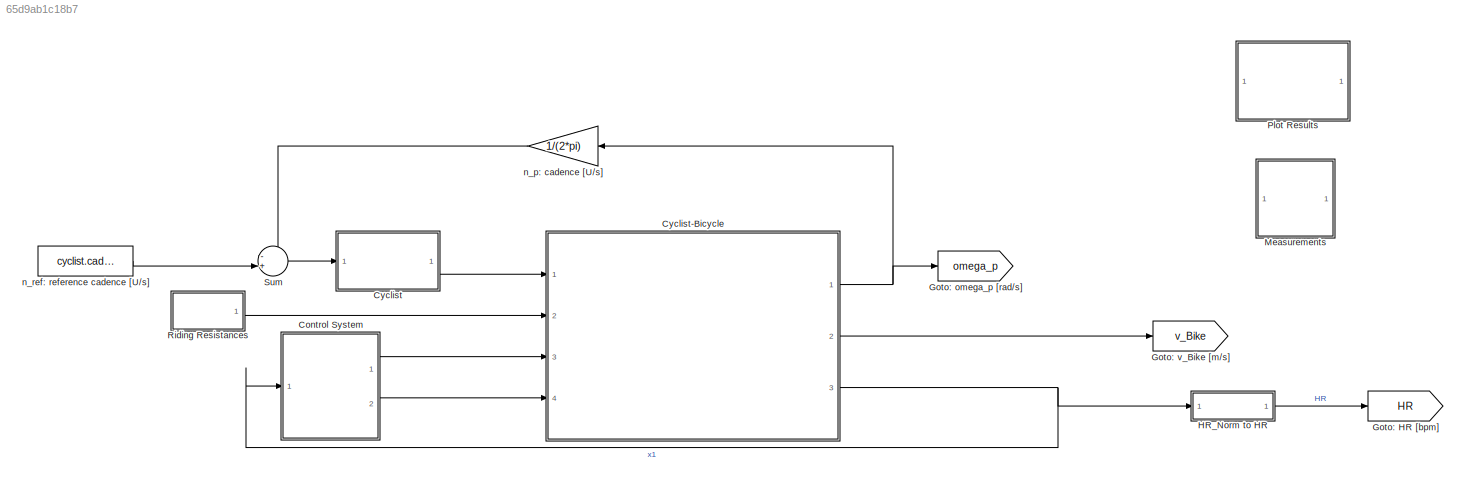
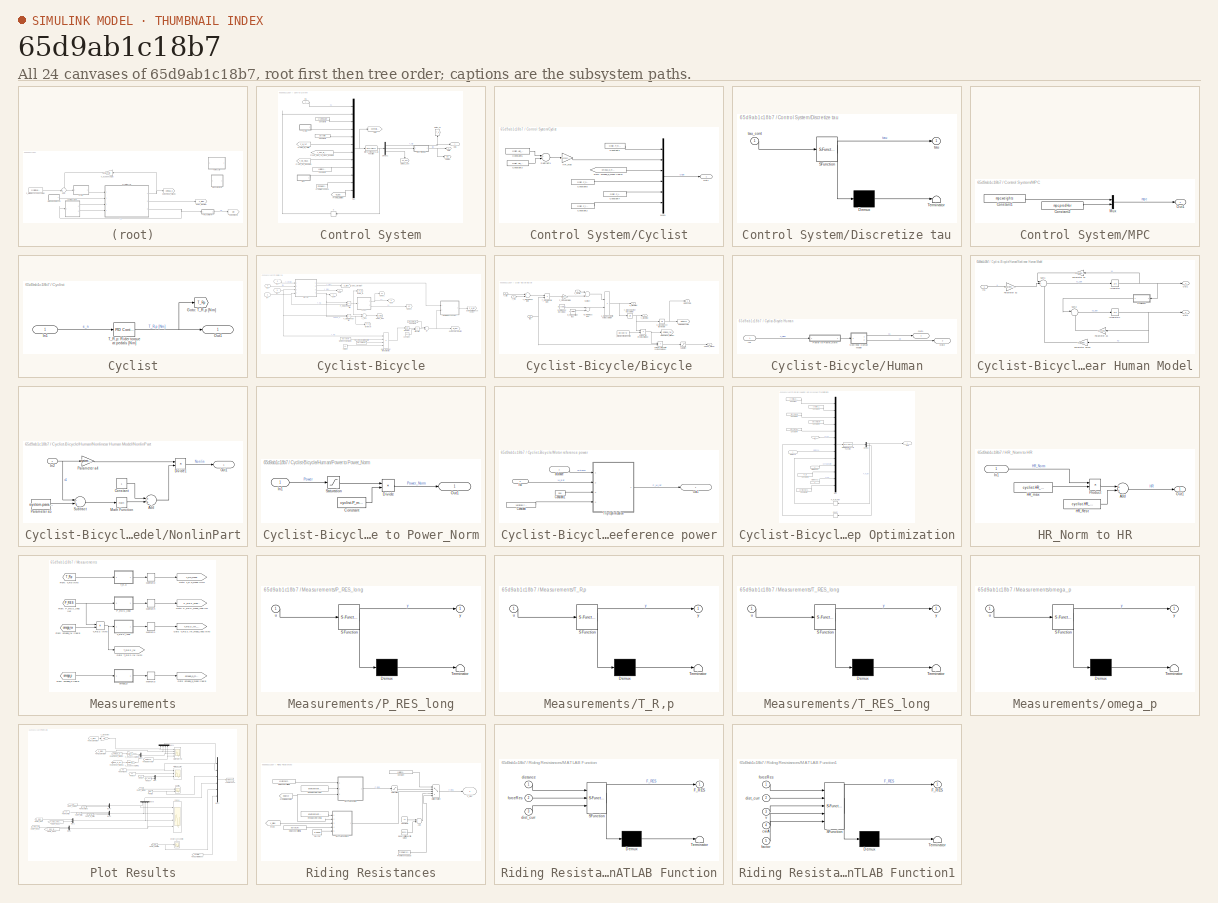
[diagram: thumbnail index - all 24 canvases of the model, root first then tree order]
MODEL slx_65d9ab1c18b7
KIND model
CONFIG AbsTol = auto
CONFIG FixedStep = 1
CONFIG MaxStep = auto
CONFIG MinStep = auto
CONFIG RelTol = 1e-3
CONFIG SampleTimeConstraint = Unconstrained
CONFIG Solver = ode4
CONFIG SolverMode = Auto
CONFIG SolverName = ode4
CONFIG StartTime = 0.0
CONFIG StopTime = 2000
BLOCK [SubSystem] Control System
  Ports = [1, 2]
  RequestExecContextInheritance = off
  Variant = off
BLOCK [Constant] Control System/Constant2
  Value = bicycle.rrw
BLOCK [Constant] Control System/Constant3
  Value = variation.controller
BLOCK [Constant] Control System/Constant9
  Value = system.param
BLOCK [SubSystem] Control System/Cyclist
  Ports = [0, 1]
  RequestExecContextInheritance = off
  Variant = off
BLOCK [Constant] Control System/Cyclist/Constant1
  Value = cyclist.P_max
BLOCK [Constant] Control System/Cyclist/Constant2
  Value = cyclist.P_ref
BLOCK [Constant] Control System/Cyclist/Constant3
  Value = cyclist.HR_rest
BLOCK [Constant] Control System/Cyclist/Constant5
  Value = cyclist.HR_ref
BLOCK [Constant] Control System/Cyclist/Constant7
  Value = cyclist.P_low
BLOCK [Constant] Control System/Cyclist/Constant8
  Value = cyclist.P_high
BLOCK [From] Control System/Cyclist/From: omega_p_meas [rad//s]
  GotoTag = omega_p_meas
  TagVisibility = global
BLOCK [Gain] Control System/Cyclist/HR_max
  Gain = 1/cyclist.HR_max
  OutDataTypeStr = Inherit: Inherit via internal rule
  ParamDataTypeStr = Inherit: Inherit via internal rule
  SaturateOnIntegerOverflow = off
BLOCK [Mux] Control System/Cyclist/Mux1
  DisplayOption = bar
  Inputs = 6
  Ports = [6, 1]
BLOCK [Outport] Control System/Cyclist/Out1
  IconDisplay = Signal name
BLOCK [Sum] Control System/Cyclist/Subtract1
  InputSameDT = off
  Inputs = +-
  OutDataTypeStr = Inherit: Inherit via internal rule
  Ports = [2, 1]
  SaturateOnIntegerOverflow = off
BLOCK [Demux] Control System/Demux1
  DisplayOption = bar
  Outputs = 3
  Ports = [1, 3]
BLOCK [SubSystem] Control System/Discretize tau
  ErrorFcn = Stateflow.Translate.translate
  PermitHierarchicalResolution = ExplicitOnly
  Ports = [1, 1]
  RequestExecContextInheritance = off
  SFBlockType = MATLAB Function
  TreatAsAtomicUnit = on
  Variant = off
BLOCK [Demux] Control System/Discretize tau/ Demux 
  Outputs = 1
  Ports = [1, 1]
BLOCK [S-Function] Control System/Discretize tau/ SFunction 
  EnableBusSupport = on
  FunctionName = sf_sfun
  PortCounts = [1 2]
  Ports = [1, 2]
  SFunctionDeploymentMode = off
  Tag = Stateflow S-Function TorqueControl_QuadRad_MPC_V16 1
BLOCK [Terminator] Control System/Discretize tau/ Terminator 
BLOCK [Outport] Control System/Discretize tau/tau
  IconDisplay = Port number
BLOCK [Inport] Control System/Discretize tau/tau_cont
  IconDisplay = Port number
BLOCK [FromWorkspace] Control System/From Workspace
  SampleTime = 0
  VariableName = TAU
  ZeroCross = on
BLOCK [From] Control System/From: P_M_ref [W]
  GotoTag = P_M_ref
  TagVisibility = global
BLOCK [From] Control System/From: T_RES_rw_meas_long [Nm] 
  GotoTag = T_RES_rw_meas_long
  TagVisibility = global
BLOCK [From] Control System/From: T_Rp_meas [Nm]
  GotoTag = T_Rp_meas
  TagVisibility = global
BLOCK [From] Control System/From: W_Bat [Wh]
  GotoTag = W_Bat
  TagVisibility = global
BLOCK [Goto] Control System/Goto
  GotoTag = ControllerInput
  TagVisibility = global
BLOCK [Goto] Control System/Goto: T_M
  GotoTag = T_M
  TagVisibility = global
BLOCK [Goto] Control System/Goto: tau
  GotoTag = tau
  TagVisibility = global
BLOCK [Goto] Control System/Goto: x2_est
  GotoTag = x2_est
  TagVisibility = global
BLOCK [Inport] Control System/In1
  IconDisplay = Signal name
BLOCK [MATLABFcn] Control System/Interpreted MATLAB Function
  MATLABFcn = ControlSystemV2
  OutputDimensions = 3
  Ports = [1, 1]
BLOCK [SubSystem] Control System/MPC
  Ports = [0, 1]
  RequestExecContextInheritance = off
  Variant = off
BLOCK [Constant] Control System/MPC/Constant1
  Value = mpc.weights
BLOCK [Constant] Control System/MPC/Constant2
  Value = mpc.predHor
BLOCK [Mux] Control System/MPC/Mux
  DisplayOption = bar
  Inputs = 2
  Ports = [2, 1]
BLOCK [Outport] Control System/MPC/Out1
  IconDisplay = Signal name
BLOCK [Mux] Control System/Mux
  DisplayOption = bar
  Inputs = 12
  Ports = [12, 1]
BLOCK [Outport] Control System/Out1
  IconDisplay = Signal name
BLOCK [Outport] Control System/Out2
  IconDisplay = Signal name
  Port = 2
BLOCK [Memory] Control System/u
  InheritSampleTime = on
  X0 = [0 init.tau init.x2_est]
BLOCK [SubSystem] Cyclist
  Ports = [1, 1]
  RequestExecContextInheritance = off
  Variant = off
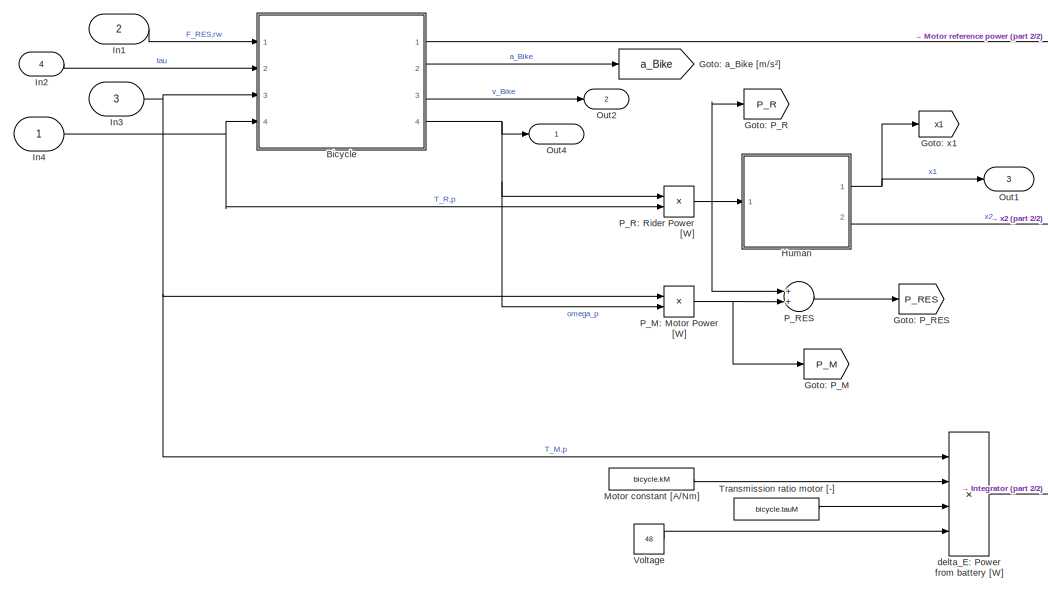
[diagram: Cyclist-Bicycle - part 1/2, left side, full height]
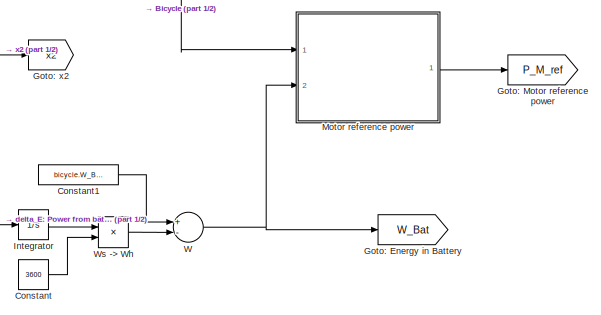
[diagram: Cyclist-Bicycle - part 2/2, middle right region]
BLOCK [SubSystem] Cyclist-Bicycle
  Ports = [4, 3]
  RequestExecContextInheritance = off
  Variant = off
BLOCK [SubSystem] Cyclist-Bicycle/Bicycle
  Ports = [4, 4]
  RequestExecContextInheritance = off
  Variant = off
BLOCK [Gain] Cyclist-Bicycle/Bicycle/F_Propulsion,rw [N]
  Gain = 1/bicycle.rrw
  OutDataTypeStr = Inherit: Inherit via internal rule
  ParamDataTypeStr = Inherit: Inherit via internal rule
  SaturateOnIntegerOverflow = off
BLOCK [Inport] Cyclist-Bicycle/Bicycle/F_RES,rw
  IconDisplay = Port number
BLOCK [Goto] Cyclist-Bicycle/Bicycle/Goto: distance [m]
  GotoTag = distance
  TagVisibility = global
BLOCK [Goto] Cyclist-Bicycle/Bicycle/Goto: omega_rw [rad//s]
  GotoTag = omega_rw
  TagVisibility = global
BLOCK [Saturate] Cyclist-Bicycle/Bicycle/Saturation
  InputPortMap = u0
  LowerLimit = 0
  Ports = [1, 1]
  UpperLimit = 1000
BLOCK [Sum] Cyclist-Bicycle/Bicycle/Subtract
  InputSameDT = off
  Inputs = -+
  OutDataTypeStr = Inherit: Inherit via internal rule
  Ports = [2, 1]
  SaturateOnIntegerOverflow = off
BLOCK [Inport] Cyclist-Bicycle/Bicycle/T_M,p
  IconDisplay = Port number
  Port = 3
BLOCK [Sum] Cyclist-Bicycle/Bicycle/T_Propulsion,p [Nm]
  InputSameDT = off
  OutDataTypeStr = Inherit: Inherit via internal rule
  Ports = [2, 1]
  SaturateOnIntegerOverflow = off
BLOCK [Product] Cyclist-Bicycle/Bicycle/T_Propulsion,rw [Nm]
  InputSameDT = off
  Inputs = */
  OutDataTypeStr = Inherit: Inherit via internal rule
  Ports = [2, 1]
  RndMeth = Floor
  SaturateOnIntegerOverflow = off
BLOCK [Inport] Cyclist-Bicycle/Bicycle/T_R,p
  IconDisplay = Port number
  Port = 4
BLOCK [Outport] Cyclist-Bicycle/Bicycle/a_Bike [m//s²]
  IconDisplay = Port number
  Port = 2
BLOCK [Product] Cyclist-Bicycle/Bicycle/a_Bike: acceleration of bicycle [m//s²]
  InputSameDT = off
  Inputs = */
  OutDataTypeStr = Inherit: Inherit via internal rule
  Ports = [2, 1]
  RndMeth = Floor
  SaturateOnIntegerOverflow = off
BLOCK [Integrator] Cyclist-Bicycle/Bicycle/d_Bike: distance traveled [m]
  InitialCondition = init.d_Bike
  Ports = [1, 1]
BLOCK [Outport] Cyclist-Bicycle/Bicycle/distance [m]
  IconDisplay = Port number
BLOCK [Constant] Cyclist-Bicycle/Bicycle/m_B: mass of bicycle [kg]
  Value = bicycle.weight
BLOCK [Constant] Cyclist-Bicycle/Bicycle/m_R: mass of rider [kg]
  Value = cyclist.weight
BLOCK [Sum] Cyclist-Bicycle/Bicycle/m_T: total mass [kg]
  InputSameDT = off
  OutDataTypeStr = Inherit: Inherit via internal rule
  Ports = [2, 1]
  SaturateOnIntegerOverflow = off
BLOCK [Outport] Cyclist-Bicycle/Bicycle/omega_p [rad//s]
  IconDisplay = Port number
  Port = 4
BLOCK [Product] Cyclist-Bicycle/Bicycle/omega_p: revolutions of pedals [rad//s]
  InputSameDT = off
  Inputs = */
  OutDataTypeStr = Inherit: Inherit via internal rule
  Ports = [2, 1]
  RndMeth = Floor
  SaturateOnIntegerOverflow = off
BLOCK [Product] Cyclist-Bicycle/Bicycle/omega_rw: revolutions of rear wheel [rad//s]
  InputSameDT = off
  Inputs = */
  OutDataTypeStr = Inherit: Inherit via internal rule
  Ports = [2, 1]
  RndMeth = Floor
  SaturateOnIntegerOverflow = off
BLOCK [Constant] Cyclist-Bicycle/Bicycle/r_rw: radius of rear wheel [m]
  Value = bicycle.rrw
BLOCK [Inport] Cyclist-Bicycle/Bicycle/tau
  IconDisplay = Port number
  Port = 2
BLOCK [Outport] Cyclist-Bicycle/Bicycle/v_Bike [m//s]
  IconDisplay = Port number
  Port = 3
BLOCK [Integrator] Cyclist-Bicycle/Bicycle/v_Bike: velocity of bicycle [m//s]
  InitialCondition = init.v_Bike
  Ports = [1, 1]
BLOCK [Constant] Cyclist-Bicycle/Constant
  Value = 3600
BLOCK [Constant] Cyclist-Bicycle/Constant1
  Value = bicycle.W_Bat
BLOCK [Goto] Cyclist-Bicycle/Goto: Energy in Battery
  GotoTag = W_Bat
  TagVisibility = global
BLOCK [Goto] Cyclist-Bicycle/Goto: Motor reference power
  GotoTag = P_M_ref
  TagVisibility = global
BLOCK [Goto] Cyclist-Bicycle/Goto: P_M
  GotoTag = P_M
  TagVisibility = global
BLOCK [Goto] Cyclist-Bicycle/Goto: P_R
  GotoTag = P_R
  TagVisibility = global
BLOCK [Goto] Cyclist-Bicycle/Goto: P_RES
  GotoTag = P_RES
  TagVisibility = global
BLOCK [Goto] Cyclist-Bicycle/Goto: a_Bike [m//s²]
  GotoTag = a_Bike
  TagVisibility = global
BLOCK [Goto] Cyclist-Bicycle/Goto: x1
  GotoTag = x1
  TagVisibility = global
BLOCK [Goto] Cyclist-Bicycle/Goto: x2
  GotoTag = x2
  TagVisibility = global
BLOCK [SubSystem] Cyclist-Bicycle/Human
  Ports = [1, 2]
  RequestExecContextInheritance = off
  Variant = off
BLOCK [Inport] Cyclist-Bicycle/Human/In1
  IconDisplay = Signal name
BLOCK [SubSystem] Cyclist-Bicycle/Human/Nonlinear Human Model
  Ports = [1, 2]
  RequestExecContextInheritance = off
  Variant = off
BLOCK [Inport] Cyclist-Bicycle/Human/Nonlinear Human Model/In1
  IconDisplay = Signal name
BLOCK [Integrator] Cyclist-Bicycle/Human/Nonlinear Human Model/Integrator
  InitialCondition = init.x1
  Ports = [1, 1]
BLOCK [Integrator] Cyclist-Bicycle/Human/Nonlinear Human Model/Integrator1
  InitialCondition = init.x2
  Ports = [1, 1]
BLOCK [SubSystem] Cyclist-Bicycle/Human/Nonlinear Human Model/NonlinPart
  Ports = [1, 1]
  RequestExecContextInheritance = off
  Variant = off
BLOCK [Sum] Cyclist-Bicycle/Human/Nonlinear Human Model/NonlinPart/Add
  InputSameDT = off
  OutDataTypeStr = Inherit: Inherit via internal rule
  Ports = [2, 1]
  SaturateOnIntegerOverflow = off
BLOCK [Constant] Cyclist-Bicycle/Human/Nonlinear Human Model/NonlinPart/Constant
BLOCK [Product] Cyclist-Bicycle/Human/Nonlinear Human Model/NonlinPart/Divide1
  InputSameDT = off
  Inputs = */
  OutDataTypeStr = Inherit: Inherit via internal rule
  Ports = [2, 1]
  RndMeth = Floor
  SaturateOnIntegerOverflow = off
BLOCK [Inport] Cyclist-Bicycle/Human/Nonlinear Human Model/NonlinPart/In2
  IconDisplay = Signal name
BLOCK [Math] Cyclist-Bicycle/Human/Nonlinear Human Model/NonlinPart/Math Function
  Ports = [1, 1]
BLOCK [Outport] Cyclist-Bicycle/Human/Nonlinear Human Model/NonlinPart/Out1
  IconDisplay = Signal name
BLOCK [Gain] Cyclist-Bicycle/Human/Nonlinear Human Model/NonlinPart/Parameter a4
  Gain = system.param(4)
  OutDataTypeStr = Inherit: Inherit via internal rule
  ParamDataTypeStr = Inherit: Inherit via internal rule
  SaturateOnIntegerOverflow = off
BLOCK [Constant] Cyclist-Bicycle/Human/Nonlinear Human Model/NonlinPart/Parameter a5
  Value = system.param(5)
BLOCK [Sum] Cyclist-Bicycle/Human/Nonlinear Human Model/NonlinPart/Subtract
  InputSameDT = off
  Inputs = -+
  OutDataTypeStr = Inherit: Inherit via internal rule
  Ports = [2, 1]
  SaturateOnIntegerOverflow = off
BLOCK [Outport] Cyclist-Bicycle/Human/Nonlinear Human Model/Out1
  IconDisplay = Signal name
BLOCK [Outport] Cyclist-Bicycle/Human/Nonlinear Human Model/Out2
  IconDisplay = Signal name
  Port = 2
BLOCK [Gain] Cyclist-Bicycle/Human/Nonlinear Human Model/Parameter a1
  Gain = -system.param(1)
  OutDataTypeStr = Inherit: Inherit via internal rule
  ParamDataTypeStr = Inherit: Inherit via internal rule
  SaturateOnIntegerOverflow = off
BLOCK [Gain] Cyclist-Bicycle/Human/Nonlinear Human Model/Parameter a2
  Gain = system.param(2)
  OutDataTypeStr = Inherit: Inherit via internal rule
  ParamDataTypeStr = Inherit: Inherit via internal rule
  SaturateOnIntegerOverflow = off
BLOCK [Gain] Cyclist-Bicycle/Human/Nonlinear Human Model/Parameter a3
  Gain = -system.param(3)
  OutDataTypeStr = Inherit: Inherit via internal rule
  ParamDataTypeStr = Inherit: Inherit via internal rule
  SaturateOnIntegerOverflow = off
BLOCK [Gain] Cyclist-Bicycle/Human/Nonlinear Human Model/Parameter a6=a2
  Gain = system.param(6)
  OutDataTypeStr = Inherit: Inherit via internal rule
  ParamDataTypeStr = Inherit: Inherit via internal rule
  SaturateOnIntegerOverflow = off
BLOCK [Sum] Cyclist-Bicycle/Human/Nonlinear Human Model/Sum1
  IconShape = round
  InputSameDT = off
  Inputs = |+++
  OutDataTypeStr = Inherit: Inherit via internal rule
  Ports = [3, 1]
  SaturateOnIntegerOverflow = off
BLOCK [Sum] Cyclist-Bicycle/Human/Nonlinear Human Model/Sum2
  IconShape = round
  InputSameDT = off
  Inputs = |++
  OutDataTypeStr = Inherit: Inherit via internal rule
  Ports = [2, 1]
  SaturateOnIntegerOverflow = off
BLOCK [Outport] Cyclist-Bicycle/Human/Out1
  IconDisplay = Signal name
BLOCK [Outport] Cyclist-Bicycle/Human/Out2
  IconDisplay = Signal name
  Port = 2
BLOCK [SubSystem] Cyclist-Bicycle/Human/Power to Power_Norm
  Ports = [1, 1]
  RequestExecContextInheritance = off
  Variant = off
BLOCK [Constant] Cyclist-Bicycle/Human/Power to Power_Norm/Constant
  Value = cyclist.P_max
BLOCK [Product] Cyclist-Bicycle/Human/Power to Power_Norm/Divide
  InputSameDT = off
  Inputs = */
  OutDataTypeStr = Inherit: Inherit via internal rule
  Ports = [2, 1]
  RndMeth = Floor
  SaturateOnIntegerOverflow = off
BLOCK [Inport] Cyclist-Bicycle/Human/Power to Power_Norm/In1
  IconDisplay = Signal name
BLOCK [Outport] Cyclist-Bicycle/Human/Power to Power_Norm/Out1
  IconDisplay = Signal name
BLOCK [Saturate] Cyclist-Bicycle/Human/Power to Power_Norm/Saturation
  InputPortMap = u0
  LowerLimit = 0
  Ports = [1, 1]
  UpperLimit = cyclist.P_max
  ZeroCross = off
BLOCK [Inport] Cyclist-Bicycle/In1
  IconDisplay = Signal name
  Port = 2
BLOCK [Inport] Cyclist-Bicycle/In2
  IconDisplay = Signal name
  Port = 4
BLOCK [Inport] Cyclist-Bicycle/In3
  IconDisplay = Signal name
  Port = 3
BLOCK [Inport] Cyclist-Bicycle/In4
  IconDisplay = Signal name
BLOCK [Integrator] Cyclist-Bicycle/Integrator
  Ports = [1, 1]
BLOCK [Constant] Cyclist-Bicycle/Motor constant [A//Nm]
  Value = bicycle.kM
BLOCK [SubSystem] Cyclist-Bicycle/Motor reference power
  Ports = [2, 1]
  RequestExecContextInheritance = off
  Variant = off
BLOCK [Constant] Cyclist-Bicycle/Motor reference power/Constant
  Value = variation.tripInfo
BLOCK [Constant] Cyclist-Bicycle/Motor reference power/Constant1
  Value = 250
BLOCK [Inport] Cyclist-Bicycle/Motor reference power/In2
  IconDisplay = Signal name
  Port = 2
BLOCK [Outport] Cyclist-Bicycle/Motor reference power/Out1
  IconDisplay = Signal name
BLOCK [SubSystem] Cyclist-Bicycle/Motor reference power/Trip Optimization
  Ports = [4, 1]
  RequestExecContextInheritance = off
  Variant = off
BLOCK [Constant] Cyclist-Bicycle/Motor reference power/Trip Optimization/Constant
  Value = cyclist.cadence
BLOCK [Constant] Cyclist-Bicycle/Motor reference power/Trip Optimization/Constant1
  Value = cyclist.P_ref
BLOCK [Constant] Cyclist-Bicycle/Motor reference power/Trip Optimization/Constant2
  Value = bicycle.kM
BLOCK [Constant] Cyclist-Bicycle/Motor reference power/Trip Optimization/Constant3
  Value = bicycle.tauM
BLOCK [Constant] Cyclist-Bicycle/Motor reference power/Trip Optimization/Constant4
  Value = bicycle.cwA
BLOCK [Constant] Cyclist-Bicycle/Motor reference power/Trip Optimization/Constant5
  Value = environment.F_RES
BLOCK [Constant] Cyclist-Bicycle/Motor reference power/Trip Optimization/Constant6
  Value = P_M
BLOCK [Memory] Cyclist-Bicycle/Motor reference power/Trip Optimization/Count
BLOCK [Demux] Cyclist-Bicycle/Motor reference power/Trip Optimization/Demux
  DisplayOption = bar
  Outputs = 2
  Ports = [1, 2]
BLOCK [Inport] Cyclist-Bicycle/Motor reference power/Trip Optimization/In2
  IconDisplay = Signal name
  Port = 2
BLOCK [MATLABFcn] Cyclist-Bicycle/Motor reference power/Trip Optimization/Interpreted MATLAB Function
  MATLABFcn = TripOptimizationV3
  OutputDimensions = 2
  Ports = [1, 1]
BLOCK [Mux] Cyclist-Bicycle/Motor reference power/Trip Optimization/Mux
  DisplayOption = bar
  Inputs = 13
  Ports = [13, 1]
BLOCK [Outport] Cyclist-Bicycle/Motor reference power/Trip Optimization/Out1
  IconDisplay = Signal name
BLOCK [Memory] Cyclist-Bicycle/Motor reference power/Trip Optimization/P_M_ref_prev
BLOCK [Inport] Cyclist-Bicycle/Motor reference power/Trip Optimization/distance
  IconDisplay = Signal name
BLOCK [Inport] Cyclist-Bicycle/Motor reference power/Trip Optimization/distance1
  IconDisplay = Signal name
  Port = 3
BLOCK [Inport] Cyclist-Bicycle/Motor reference power/Trip Optimization/distance3
  IconDisplay = Signal name
  Port = 4
BLOCK [Inport] Cyclist-Bicycle/Motor reference power/distance
  IconDisplay = Signal name
BLOCK [Outport] Cyclist-Bicycle/Out1
  IconDisplay = Signal name
  Port = 3
BLOCK [Outport] Cyclist-Bicycle/Out2
  IconDisplay = Signal name
  Port = 2
BLOCK [Outport] Cyclist-Bicycle/Out4
  IconDisplay = Signal name
BLOCK [Product] Cyclist-Bicycle/P_M: Motor Power [W]
  InputSameDT = off
  OutDataTypeStr = Inherit: Inherit via internal rule
  Ports = [2, 1]
  RndMeth = Floor
  SaturateOnIntegerOverflow = off
BLOCK [Product] Cyclist-Bicycle/P_R: Rider Power [W]
  InputSameDT = off
  OutDataTypeStr = Inherit: Inherit via internal rule
  Ports = [2, 1]
  RndMeth = Floor
  SaturateOnIntegerOverflow = off
BLOCK [Sum] Cyclist-Bicycle/P_RES
  InputSameDT = off
  OutDataTypeStr = Inherit: Inherit via internal rule
  Ports = [2, 1]
  SaturateOnIntegerOverflow = off
BLOCK [Constant] Cyclist-Bicycle/Transmission ratio motor [-]
  Value = bicycle.tauM
BLOCK [Constant] Cyclist-Bicycle/Voltage
  Value = 48
BLOCK [Sum] Cyclist-Bicycle/W
  InputSameDT = off
  Inputs = +-
  OutDataTypeStr = Inherit: Inherit via internal rule
  Ports = [2, 1]
  SaturateOnIntegerOverflow = off
BLOCK [Product] Cyclist-Bicycle/Ws -> Wh
  InputSameDT = off
  Inputs = */
  OutDataTypeStr = Inherit: Inherit via internal rule
  Ports = [2, 1]
  RndMeth = Floor
  SaturateOnIntegerOverflow = off
BLOCK [Product] Cyclist-Bicycle/delta_E: Power from battery [W]
  InputSameDT = off
  Inputs = **/*
  OutDataTypeStr = Inherit: Inherit via internal rule
  Ports = [4, 1]
  RndMeth = Floor
  SaturateOnIntegerOverflow = off
BLOCK [Goto] Cyclist/Goto: T_R,p [Nm]
  GotoTag = T_Rp
  TagVisibility = global
BLOCK [Inport] Cyclist/In1
  IconDisplay = Signal name
BLOCK [Outport] Cyclist/Out1
  IconDisplay = Signal name
BLOCK [Reference] Cyclist/T_R,p: Rider torque at pedals [Nm]  REF=simulink/Continuous/PID Controller
  Ports = [1, 1]
  SourceBlock = simulink/Continuous/PID Controller
  SourceType = PID 1dof
BLOCK [Goto] Goto: HR [bpm]
  GotoTag = HR
  TagVisibility = global
BLOCK [Goto] Goto: omega_p [rad//s]
  GotoTag = omega_p
  TagVisibility = global
BLOCK [Goto] Goto: v_Bike [m//s]
  GotoTag = v_Bike
  TagVisibility = global
BLOCK [SubSystem] HR_Norm to HR
  Ports = [1, 1]
  RequestExecContextInheritance = off
  Variant = off
BLOCK [Sum] HR_Norm to HR/Add
  InputSameDT = off
  OutDataTypeStr = Inherit: Inherit via internal rule
  Ports = [2, 1]
  SaturateOnIntegerOverflow = off
BLOCK [Constant] HR_Norm to HR/HR_Rest
  Value = cyclist.HR_rest
BLOCK [Constant] HR_Norm to HR/HR_max
  Value = cyclist.HR_max
BLOCK [Inport] HR_Norm to HR/In1
  IconDisplay = Signal name
BLOCK [Outport] HR_Norm to HR/Out1
  IconDisplay = Signal name
BLOCK [Product] HR_Norm to HR/Product
  InputSameDT = off
  OutDataTypeStr = Inherit: Inherit via internal rule
  Ports = [2, 1]
  RndMeth = Floor
  SaturateOnIntegerOverflow = off
BLOCK [SubSystem] Measurements
  Ports = []
  RequestExecContextInheritance = off
  Variant = off
BLOCK [From] Measurements/From: P_RES_long [W]
  GotoTag = P_RES
  TagVisibility = global
BLOCK [From] Measurements/From: T_Rp [Nm]
  GotoTag = T_Rp
  TagVisibility = global
BLOCK [From] Measurements/From: omega_p [rad//s]
  GotoTag = omega_p
  TagVisibility = global
BLOCK [From] Measurements/From: omega_rw [rad//s]
  GotoTag = omega_rw
  TagVisibility = global
BLOCK [Goto] Measurements/Goto: P_RES_meas_long [W]
  GotoTag = P_RES_meas_long
  TagVisibility = global
BLOCK [Goto] Measurements/Goto: T_R,p_meas [Nm]
  GotoTag = T_Rp_meas
  TagVisibility = global
BLOCK [Goto] Measurements/Goto: T_RES,rw [Nm]
  GotoTag = T_RES_rw
  TagVisibility = global
BLOCK [Goto] Measurements/Goto: T_RES,rw_meas_long [Nm]
  GotoTag = T_RES_rw_meas_long
  TagVisibility = global
BLOCK [Goto] Measurements/Goto: omega_p_meas [rad//s]
  GotoTag = omega_p_meas
  TagVisibility = global
BLOCK [Memory] Measurements/Memory1
  InheritSampleTime = on
BLOCK [Memory] Measurements/Memory2
  InheritSampleTime = on
BLOCK [Memory] Measurements/Memory3
  InheritSampleTime = on
BLOCK [Memory] Measurements/Memory4
  InheritSampleTime = on
  X0 = init.P_RES
BLOCK [SubSystem] Measurements/P_RES_long
  ErrorFcn = Stateflow.Translate.translate
  PermitHierarchicalResolution = ExplicitOnly
  Ports = [1, 1]
  RequestExecContextInheritance = off
  SFBlockType = MATLAB Function
  TreatAsAtomicUnit = on
  Variant = off
BLOCK [Demux] Measurements/P_RES_long/ Demux 
  Outputs = 1
  Ports = [1, 1]
BLOCK [S-Function] Measurements/P_RES_long/ SFunction 
  EnableBusSupport = on
  FunctionName = sf_sfun
  PortCounts = [1 2]
  Ports = [1, 2]
  SFunctionDeploymentMode = off
  Tag = Stateflow S-Function TorqueControl_QuadRad_MPC_V16 4
BLOCK [Terminator] Measurements/P_RES_long/ Terminator 
BLOCK [Inport] Measurements/P_RES_long/u
  IconDisplay = Port number
BLOCK [Outport] Measurements/P_RES_long/y
  IconDisplay = Port number
BLOCK [SubSystem] Measurements/T_R,p
  ErrorFcn = Stateflow.Translate.translate
  PermitHierarchicalResolution = ExplicitOnly
  Ports = [1, 1]
  RequestExecContextInheritance = off
  SFBlockType = MATLAB Function
  TreatAsAtomicUnit = on
  Variant = off
BLOCK [Demux] Measurements/T_R,p/ Demux 
  Outputs = 1
  Ports = [1, 1]
BLOCK [S-Function] Measurements/T_R,p/ SFunction 
  EnableBusSupport = on
  FunctionName = sf_sfun
  PortCounts = [1 2]
  Ports = [1, 2]
  SFunctionDeploymentMode = off
  Tag = Stateflow S-Function TorqueControl_QuadRad_MPC_V16 3
BLOCK [Terminator] Measurements/T_R,p/ Terminator 
BLOCK [Inport] Measurements/T_R,p/u
  IconDisplay = Port number
BLOCK [Outport] Measurements/T_R,p/y
  IconDisplay = Port number
BLOCK [Product] Measurements/T_RES [Nm]
  InputSameDT = off
  Inputs = */
  OutDataTypeStr = Inherit: Inherit via internal rule
  Ports = [2, 1]
  RndMeth = Floor
  SaturateOnIntegerOverflow = off
BLOCK [SubSystem] Measurements/T_RES_long
  ErrorFcn = Stateflow.Translate.translate
  PermitHierarchicalResolution = ExplicitOnly
  Ports = [1, 1]
  RequestExecContextInheritance = off
  SFBlockType = MATLAB Function
  TreatAsAtomicUnit = on
  Variant = off
BLOCK [Demux] Measurements/T_RES_long/ Demux 
  Outputs = 1
  Ports = [1, 1]
BLOCK [S-Function] Measurements/T_RES_long/ SFunction 
  EnableBusSupport = on
  FunctionName = sf_sfun
  PortCounts = [1 2]
  Ports = [1, 2]
  SFunctionDeploymentMode = off
  Tag = Stateflow S-Function TorqueControl_QuadRad_MPC_V16 2
BLOCK [Terminator] Measurements/T_RES_long/ Terminator 
BLOCK [Inport] Measurements/T_RES_long/u
  IconDisplay = Port number
BLOCK [Outport] Measurements/T_RES_long/y
  IconDisplay = Port number
BLOCK [SubSystem] Measurements/omega_p
  ErrorFcn = Stateflow.Translate.translate
  PermitHierarchicalResolution = ExplicitOnly
  Ports = [1, 1]
  RequestExecContextInheritance = off
  SFBlockType = MATLAB Function
  TreatAsAtomicUnit = on
  Variant = off
BLOCK [Demux] Measurements/omega_p/ Demux 
  Outputs = 1
  Ports = [1, 1]
BLOCK [S-Function] Measurements/omega_p/ SFunction 
  EnableBusSupport = on
  FunctionName = sf_sfun
  PortCounts = [1 2]
  Ports = [1, 2]
  SFunctionDeploymentMode = off
  Tag = Stateflow S-Function TorqueControl_QuadRad_MPC_V16 5
BLOCK [Terminator] Measurements/omega_p/ Terminator 
BLOCK [Inport] Measurements/omega_p/u
  IconDisplay = Port number
BLOCK [Outport] Measurements/omega_p/y
  IconDisplay = Port number
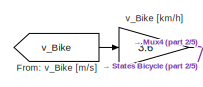
[diagram: Plot Results - part 1/5, top center region]
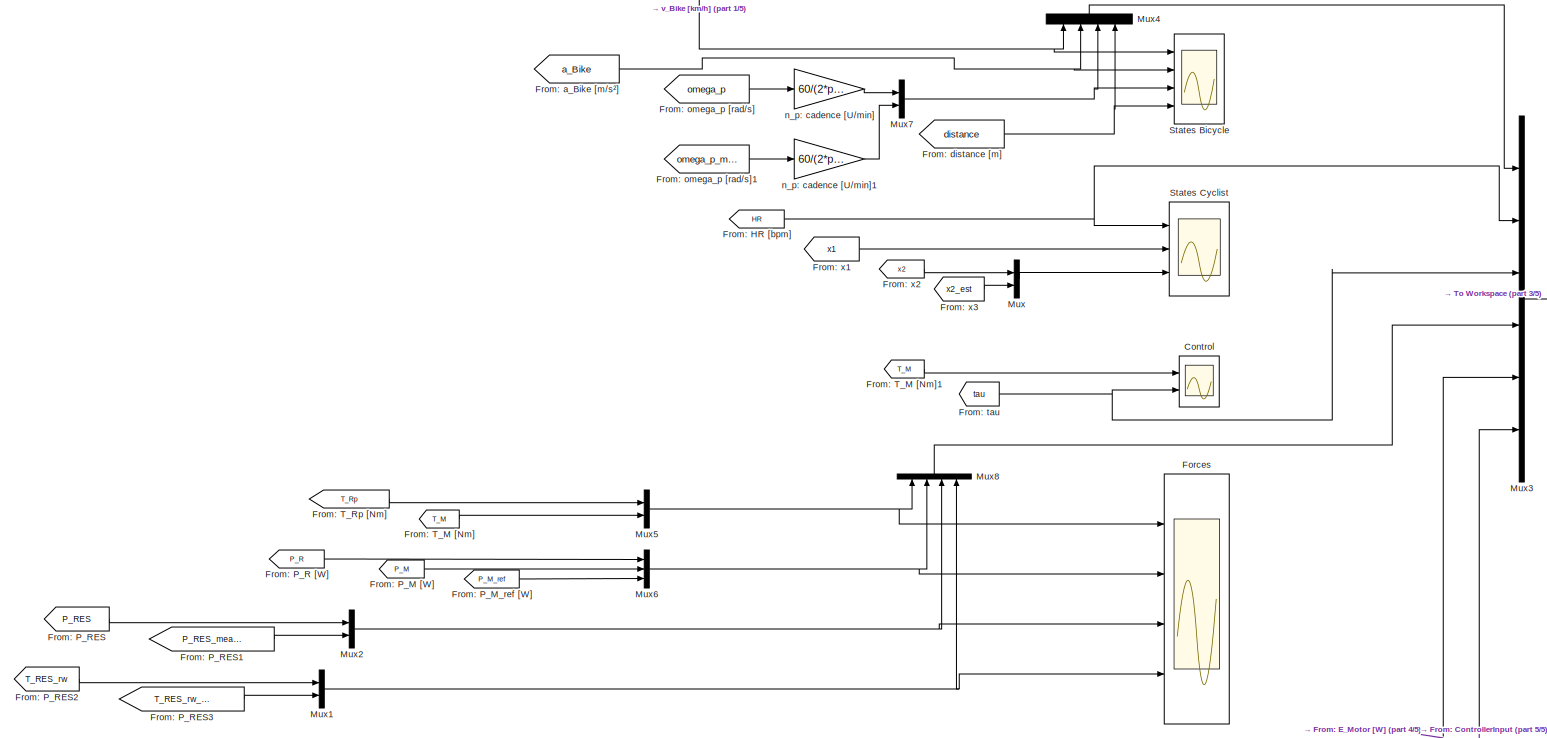
[diagram: Plot Results - part 2/5, full width, middle band]
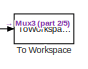
[diagram: Plot Results - part 3/5, middle right region]
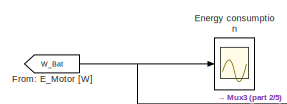
[diagram: Plot Results - part 4/5, bottom center region]
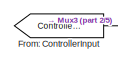
[diagram: Plot Results - part 5/5, bottom right region]
BLOCK [SubSystem] Plot Results
  Ports = []
  RequestExecContextInheritance = off
  Variant = off
BLOCK [Scope] Plot Results/Control
  NumInputPorts = 2
  Ports = [2]
  ScopeSpecificationString = Simulink.scopes.TimeScopeBlockCfg('CurrentConfiguration', extmgr.ConfigurationSet(extmgr.Configuration('Core','General UI',true),extmgr.Configuration('Core','Source UI',true),extmgr.Configuration('Sources','WiredSimulink',true,'DataLoggingVariableName','ScopeData3'),extmgr.Configuration('Visuals','Time Domain',true,'SerializedDisplays',{struct('MinYLimReal','-3.73019','MaxYLimReal','33.57175','YLa...<+2061ch>
BLOCK [Scope] Plot Results/Energy consumption
  Ports = [1]
  ScopeSpecificationString = Simulink.scopes.TimeScopeBlockCfg('CurrentConfiguration', extmgr.ConfigurationSet(extmgr.Configuration('Core','General UI',true),extmgr.Configuration('Core','Source UI',true),extmgr.Configuration('Sources','WiredSimulink',true,'DataLoggingVariableName','ScopeData1'),extmgr.Configuration('Visuals','Time Domain',true,'SerializedDisplays',{struct('MinYLimReal','-16.56539','MaxYLimReal','112.95171','Y...<+1495ch>
BLOCK [Scope] Plot Results/Forces
  NumInputPorts = 4
  Ports = [4]
  ScopeSpecificationString = Simulink.scopes.TimeScopeBlockCfg('CurrentConfiguration', extmgr.ConfigurationSet(extmgr.Configuration('Core','General UI',true),extmgr.Configuration('Core','Source UI',true),extmgr.Configuration('Sources','WiredSimulink',true,'DataLoggingVariableName','ScopeData1'),extmgr.Configuration('Visuals','Time Domain',true,'SerializedDisplays',{struct('MinYLimReal','-7.01968','MaxYLimReal','63.17715','YLa...<+3572ch>
BLOCK [From] Plot Results/From: ControllerInput
  GotoTag = ControllerInput
  TagVisibility = global
BLOCK [From] Plot Results/From: E_Motor [W]
  GotoTag = W_Bat
  TagVisibility = global
BLOCK [From] Plot Results/From: HR [bpm]
  GotoTag = HR
  TagVisibility = global
BLOCK [From] Plot Results/From: P_M [W]
  GotoTag = P_M
  TagVisibility = global
BLOCK [From] Plot Results/From: P_M_ref [W]
  GotoTag = P_M_ref
  TagVisibility = global
BLOCK [From] Plot Results/From: P_R [W]
  GotoTag = P_R
  TagVisibility = global
BLOCK [From] Plot Results/From: P_RES
  GotoTag = P_RES
  TagVisibility = global
BLOCK [From] Plot Results/From: P_RES1
  GotoTag = P_RES_meas_long
  TagVisibility = global
BLOCK [From] Plot Results/From: P_RES2
  GotoTag = T_RES_rw
  TagVisibility = global
BLOCK [From] Plot Results/From: P_RES3
  GotoTag = T_RES_rw_meas_long
  TagVisibility = global
BLOCK [From] Plot Results/From: T_M [Nm]
  GotoTag = T_M
  TagVisibility = global
BLOCK [From] Plot Results/From: T_M [Nm]1
  GotoTag = T_M
  TagVisibility = global
BLOCK [From] Plot Results/From: T_Rp [Nm]
  GotoTag = T_Rp
  TagVisibility = global
BLOCK [From] Plot Results/From: a_Bike [m//s²]
  GotoTag = a_Bike
  TagVisibility = global
BLOCK [From] Plot Results/From: distance [m]
  GotoTag = distance
  TagVisibility = global
BLOCK [From] Plot Results/From: omega_p [rad//s]
  GotoTag = omega_p
  TagVisibility = global
BLOCK [From] Plot Results/From: omega_p [rad//s]1
  GotoTag = omega_p_meas
  TagVisibility = global
BLOCK [From] Plot Results/From: tau
  GotoTag = tau
  TagVisibility = global
BLOCK [From] Plot Results/From: v_Bike [m//s]
  GotoTag = v_Bike
  TagVisibility = global
BLOCK [From] Plot Results/From: x1
  GotoTag = x1
  TagVisibility = global
BLOCK [From] Plot Results/From: x2
  GotoTag = x2
  TagVisibility = global
BLOCK [From] Plot Results/From: x3
  GotoTag = x2_est
  TagVisibility = global
BLOCK [Mux] Plot Results/Mux
  DisplayOption = bar
  Inputs = 2
  Ports = [2, 1]
BLOCK [Mux] Plot Results/Mux1
  DisplayOption = bar
  Inputs = 2
  Ports = [2, 1]
BLOCK [Mux] Plot Results/Mux2
  DisplayOption = bar
  Inputs = 2
  Ports = [2, 1]
BLOCK [Mux] Plot Results/Mux3
  DisplayOption = bar
  Inputs = 6
  Ports = [6, 1]
BLOCK [Mux] Plot Results/Mux4
  DisplayOption = bar
  Ports = [4, 1]
BLOCK [Mux] Plot Results/Mux5
  DisplayOption = bar
  Inputs = 2
  Ports = [2, 1]
BLOCK [Mux] Plot Results/Mux6
  DisplayOption = bar
  Inputs = 3
  Ports = [3, 1]
BLOCK [Mux] Plot Results/Mux7
  DisplayOption = bar
  Inputs = 2
  Ports = [2, 1]
BLOCK [Mux] Plot Results/Mux8
  DisplayOption = bar
  Ports = [4, 1]
BLOCK [Scope] Plot Results/States Bicycle
  NumInputPorts = 4
  Ports = [4]
  ScopeSpecificationString = Simulink.scopes.TimeScopeBlockCfg('CurrentConfiguration', extmgr.ConfigurationSet(extmgr.Configuration('Core','General UI',true),extmgr.Configuration('Core','Source UI',true),extmgr.Configuration('Sources','WiredSimulink',true,'DataLoggingVariableName','ScopeData1'),extmgr.Configuration('Visuals','Time Domain',true,'SerializedDisplays',{struct('MinYLimReal','10.34108','MaxYLimReal','15.60464','YLa...<+3525ch>
BLOCK [Scope] Plot Results/States Cyclist
  NumInputPorts = 3
  Ports = [3]
  ScopeSpecificationString = Simulink.scopes.TimeScopeBlockCfg('CurrentConfiguration', extmgr.ConfigurationSet(extmgr.Configuration('Core','General UI',true),extmgr.Configuration('Core','Source UI',true),extmgr.Configuration('Sources','WiredSimulink',true,'DataLoggingVariableName','ScopeData1'),extmgr.Configuration('Visuals','Time Domain',true,'SerializedDisplays',{struct('MinYLimReal','104.37352','MaxYLimReal','160.05015','Y...<+2789ch>
BLOCK [ToWorkspace] Plot Results/To Workspace
  FixptAsFi = on
  MaxDataPoints = inf
  Ports = [1]
  SampleTime = -1
  Save2DSignal = 3-D array (concatenate along third dimension)
  SaveFormat = Timeseries
  VariableName = simData
BLOCK [Gain] Plot Results/n_p: cadence [U//min]
  Gain = 60/(2*pi)
  OutDataTypeStr = Inherit: Inherit via internal rule
  ParamDataTypeStr = Inherit: Inherit via internal rule
  SaturateOnIntegerOverflow = off
BLOCK [Gain] Plot Results/n_p: cadence [U//min]1
  Gain = 60/(2*pi)
  OutDataTypeStr = Inherit: Inherit via internal rule
  ParamDataTypeStr = Inherit: Inherit via internal rule
  SaturateOnIntegerOverflow = off
BLOCK [Gain] Plot Results/v_Bike [km//h]
  Gain = 3.6
  OutDataTypeStr = Inherit: Inherit via internal rule
  ParamDataTypeStr = Inherit: Inherit via internal rule
  SaturateOnIntegerOverflow = off
BLOCK [SubSystem] Riding Resistances
  Ports = [0, 1]
  RequestExecContextInheritance = off
  Variant = off
BLOCK [Constant] Riding Resistances/0.5*rho
  Value = 0.6020
BLOCK [Sum] Riding Resistances/Add
  InputSameDT = off
  OutDataTypeStr = Inherit: Inherit via internal rule
  Ports = [2, 1]
  SaturateOnIntegerOverflow = off
BLOCK [Reference] Riding Resistances/Band-Limited White Noise  REF=simulink/Sources/Band-Limited
White Noise
  Ports = [0, 1]
  SourceBlock = simulink/Sources/Band-Limited\nWhite Noise
  SourceType = Band-Limited White Noise.
BLOCK [Constant] Riding Resistances/Constant
  Value = variation.rideRes
BLOCK [Constant] Riding Resistances/Constant1
  Value = 20
BLOCK [Outport] Riding Resistances/F_Res
  IconDisplay = Signal name
BLOCK [From] Riding Resistances/From
  GotoTag = v_Bike
  TagVisibility = global
BLOCK [FromWorkspace] Riding Resistances/From Workspace
  SampleTime = 0
  VariableName = F_RES
  ZeroCross = on
BLOCK [From] Riding Resistances/From: distance [m]
  GotoTag = distance
  TagVisibility = global
BLOCK [SubSystem] Riding Resistances/MATLAB Function
  ErrorFcn = Stateflow.Translate.translate
  PermitHierarchicalResolution = ExplicitOnly
  Ports = [3, 1]
  RequestExecContextInheritance = off
  SFBlockType = MATLAB Function
  TreatAsAtomicUnit = on
  Variant = off
BLOCK [Demux] Riding Resistances/MATLAB Function/ Demux 
  Outputs = 1
  Ports = [1, 1]
BLOCK [S-Function] Riding Resistances/MATLAB Function/ SFunction 
  EnableBusSupport = on
  FunctionName = sf_sfun
  PortCounts = [3 2]
  Ports = [3, 2]
  SFunctionDeploymentMode = off
  Tag = Stateflow S-Function TorqueControl_QuadRad_MPC_V16 7
BLOCK [Terminator] Riding Resistances/MATLAB Function/ Terminator 
BLOCK [Outport] Riding Resistances/MATLAB Function/F_RES
  IconDisplay = Port number
BLOCK [Inport] Riding Resistances/MATLAB Function/dist_curr
  IconDisplay = Port number
  Port = 3
BLOCK [Inport] Riding Resistances/MATLAB Function/distance
  IconDisplay = Port number
BLOCK [Inport] Riding Resistances/MATLAB Function/forceRes
  IconDisplay = Port number
  Port = 2
BLOCK [SubSystem] Riding Resistances/MATLAB Function1
  ErrorFcn = Stateflow.Translate.translate
  PermitHierarchicalResolution = ExplicitOnly
  Ports = [5, 1]
  RequestExecContextInheritance = off
  SFBlockType = MATLAB Function
  TreatAsAtomicUnit = on
  Variant = off
BLOCK [Demux] Riding Resistances/MATLAB Function1/ Demux 
  Outputs = 1
  Ports = [1, 1]
BLOCK [S-Function] Riding Resistances/MATLAB Function1/ SFunction 
  EnableBusSupport = on
  FunctionName = sf_sfun
  PortCounts = [5 2]
  Ports = [5, 2]
  SFunctionDeploymentMode = off
  Tag = Stateflow S-Function TorqueControl_QuadRad_MPC_V16 6
BLOCK [Terminator] Riding Resistances/MATLAB Function1/ Terminator 
BLOCK [Outport] Riding Resistances/MATLAB Function1/F_RES
  IconDisplay = Port number
BLOCK [Inport] Riding Resistances/MATLAB Function1/cwA
  IconDisplay = Port number
  Port = 4
BLOCK [Inport] Riding Resistances/MATLAB Function1/dist_curr
  IconDisplay = Port number
  Port = 2
BLOCK [Inport] Riding Resistances/MATLAB Function1/factor
  IconDisplay = Port number
  Port = 5
BLOCK [Inport] Riding Resistances/MATLAB Function1/forceRes
  IconDisplay = Port number
BLOCK [Inport] Riding Resistances/MATLAB Function1/v
  IconDisplay = Port number
  Port = 3
BLOCK [MultiPortSwitch] Riding Resistances/Multiport Switch
  InputSameDT = off
  Inputs = 4
  Ports = [5, 1]
  SaturateOnIntegerOverflow = off
BLOCK [Constant] Riding Resistances/Resistance force [N]
  Value = environment.forceResistances
BLOCK [Constant] Riding Resistances/Resistance force [N]1
  Value = environment.F_RES
BLOCK [Saturate] Riding Resistances/Saturation
  InputPortMap = u0
  LowerLimit = 0
  Ports = [1, 1]
  UpperLimit = 150
BLOCK [Constant] Riding Resistances/distance profile [m]
  Value = environment.distance
BLOCK [Constant] Riding Resistances/distance profile [m]1
  Value = bicycle.cwA
BLOCK [Sum] Sum
  IconShape = round
  InputSameDT = off
  Inputs = -+|
  OutDataTypeStr = Inherit: Inherit via internal rule
  Ports = [2, 1]
  SaturateOnIntegerOverflow = off
BLOCK [Gain] n_p: cadence [U//s]
  Gain = 1/(2*pi)
  OutDataTypeStr = Inherit: Inherit via internal rule
  ParamDataTypeStr = Inherit: Inherit via internal rule
  SaturateOnIntegerOverflow = off
BLOCK [Constant] n_ref: reference cadence [U//s]
  Value = cyclist.cadence
LINE Control System/Constant2:1 -> Control System/Mux:5
LINE Control System/Constant3:1 -> Control System/Mux:9
LINE Control System/Constant9:1 -> Control System/Mux:3
LINE Control System/Cyclist/Constant1:1 -> Control System/Cyclist/Mux1:1
LINE Control System/Cyclist/Constant2:1 -> Control System/Cyclist/Mux1:6
LINE Control System/Cyclist/Constant3:1 -> Control System/Cyclist/Subtract1:2
LINE Control System/Cyclist/Constant5:1 -> Control System/Cyclist/Subtract1:1
LINE Control System/Cyclist/Constant7:1 -> Control System/Cyclist/Mux1:5
LINE Control System/Cyclist/Constant8:1 -> Control System/Cyclist/Mux1:4
LINE Control System/Cyclist/From: omega_p_meas [rad//s]:1 -> Control System/Cyclist/Mux1:3
LINE Control System/Cyclist/HR_max:1 -> Control System/Cyclist/Mux1:2
LINE Control System/Cyclist/Mux1:1 -> Control System/Cyclist/Out1:1
LINE Control System/Cyclist/Subtract1:1 -> Control System/Cyclist/HR_max:1
LINE Control System/Cyclist:1 -> Control System/Mux:4
NET Control System/Demux1:1 -> Control System/Goto: T_M:1, Control System/Out1:1
LINE Control System/Demux1:2 -> Control System/Discretize tau:1
LINE Control System/Demux1:3 -> Control System/Goto: x2_est:1
NET Control System/Discretize tau:1 -> Control System/Goto: tau:1, Control System/Out2:1
LINE Control System/From Workspace:1 -> Control System/Mux:11
LINE Control System/From: P_M_ref [W]:1 -> Control System/Mux:6
LINE Control System/From: T_RES_rw_meas_long [Nm] :1 -> Control System/Mux:7
LINE Control System/From: T_Rp_meas [Nm]:1 -> Control System/Mux:8
LINE Control System/From: W_Bat [Wh]:1 -> Control System/Mux:12
LINE Control System/In1:1 -> Control System/Mux:1
NET Control System/Interpreted MATLAB Function:1 -> Control System/Demux1:1, Control System/u:1
LINE Control System/MPC/Constant1:1 -> Control System/MPC/Mux:1
LINE Control System/MPC/Constant2:1 -> Control System/MPC/Mux:2
LINE Control System/MPC/Mux:1 -> Control System/MPC/Out1:1
LINE Control System/MPC:1 -> Control System/Mux:10
NET Control System/Mux:1 -> Control System/Goto:1, Control System/Interpreted MATLAB Function:1
LINE Control System/u:1 -> Control System/Mux:2
LINE Control System:1 -> Cyclist-Bicycle:3
LINE Control System:2 -> Cyclist-Bicycle:4
LINE Cyclist-Bicycle/Bicycle/F_Propulsion,rw [N]:1 -> Cyclist-Bicycle/Bicycle/Subtract:2
LINE Cyclist-Bicycle/Bicycle/F_RES,rw:1 -> Cyclist-Bicycle/Bicycle/Subtract:1
LINE Cyclist-Bicycle/Bicycle/Saturation:1 -> Cyclist-Bicycle/Bicycle/omega_p [rad//s]:1
LINE Cyclist-Bicycle/Bicycle/Subtract:1 -> Cyclist-Bicycle/Bicycle/a_Bike: acceleration of bicycle [m//s²]:1
LINE Cyclist-Bicycle/Bicycle/T_M,p:1 -> Cyclist-Bicycle/Bicycle/T_Propulsion,p [Nm]:1
LINE Cyclist-Bicycle/Bicycle/T_Propulsion,p [Nm]:1 -> Cyclist-Bicycle/Bicycle/T_Propulsion,rw [Nm]:1
LINE Cyclist-Bicycle/Bicycle/T_Propulsion,rw [Nm]:1 -> Cyclist-Bicycle/Bicycle/F_Propulsion,rw [N]:1
LINE Cyclist-Bicycle/Bicycle/T_R,p:1 -> Cyclist-Bicycle/Bicycle/T_Propulsion,p [Nm]:2
NET Cyclist-Bicycle/Bicycle/a_Bike: acceleration of bicycle [m//s²]:1 -> Cyclist-Bicycle/Bicycle/a_Bike [m//s²]:1, Cyclist-Bicycle/Bicycle/v_Bike: velocity of bicycle [m//s]:1
NET Cyclist-Bicycle/Bicycle/d_Bike: distance traveled [m]:1 -> Cyclist-Bicycle/Bicycle/Goto: distance [m]:1, Cyclist-Bicycle/Bicycle/distance [m]:1
LINE Cyclist-Bicycle/Bicycle/m_B: mass of bicycle [kg]:1 -> Cyclist-Bicycle/Bicycle/m_T: total mass [kg]:1
LINE Cyclist-Bicycle/Bicycle/m_R: mass of rider [kg]:1 -> Cyclist-Bicycle/Bicycle/m_T: total mass [kg]:2
LINE Cyclist-Bicycle/Bicycle/m_T: total mass [kg]:1 -> Cyclist-Bicycle/Bicycle/a_Bike: acceleration of bicycle [m//s²]:2
LINE Cyclist-Bicycle/Bicycle/omega_p: revolutions of pedals [rad//s]:1 -> Cyclist-Bicycle/Bicycle/Saturation:1
NET Cyclist-Bicycle/Bicycle/omega_rw: revolutions of rear wheel [rad//s]:1 -> Cyclist-Bicycle/Bicycle/Goto: omega_rw [rad//s]:1, Cyclist-Bicycle/Bicycle/omega_p: revolutions of pedals [rad//s]:1
LINE Cyclist-Bicycle/Bicycle/r_rw: radius of rear wheel [m]:1 -> Cyclist-Bicycle/Bicycle/omega_rw: revolutions of rear wheel [rad//s]:2
NET Cyclist-Bicycle/Bicycle/tau:1 -> Cyclist-Bicycle/Bicycle/T_Propulsion,rw [Nm]:2, Cyclist-Bicycle/Bicycle/omega_p: revolutions of pedals [rad//s]:2
NET Cyclist-Bicycle/Bicycle/v_Bike: velocity of bicycle [m//s]:1 -> Cyclist-Bicycle/Bicycle/d_Bike: distance traveled [m]:1, Cyclist-Bicycle/Bicycle/omega_rw: revolutions of rear wheel [rad//s]:1, Cyclist-Bicycle/Bicycle/v_Bike [m//s]:1
LINE Cyclist-Bicycle/Bicycle:1 -> Cyclist-Bicycle/Motor reference power:1
LINE Cyclist-Bicycle/Bicycle:2 -> Cyclist-Bicycle/Goto: a_Bike [m//s²]:1
LINE Cyclist-Bicycle/Bicycle:3 -> Cyclist-Bicycle/Out2:1
NET Cyclist-Bicycle/Bicycle:4 -> Cyclist-Bicycle/Out4:1, Cyclist-Bicycle/P_M: Motor Power [W]:2, Cyclist-Bicycle/P_R: Rider Power [W]:1
LINE Cyclist-Bicycle/Constant1:1 -> Cyclist-Bicycle/W:1
LINE Cyclist-Bicycle/Constant:1 -> Cyclist-Bicycle/Ws -> Wh:2
LINE Cyclist-Bicycle/Human/In1:1 -> Cyclist-Bicycle/Human/Power to Power_Norm:1
LINE Cyclist-Bicycle/Human/Nonlinear Human Model/In1:1 -> Cyclist-Bicycle/Human/Nonlinear Human Model/Parameter a2:1
NET Cyclist-Bicycle/Human/Nonlinear Human Model/Integrator1:1 -> Cyclist-Bicycle/Human/Nonlinear Human Model/Out2:1, Cyclist-Bicycle/Human/Nonlinear Human Model/Parameter a3:1, Cyclist-Bicycle/Human/Nonlinear Human Model/Parameter a6=a2:1
NET Cyclist-Bicycle/Human/Nonlinear Human Model/Integrator:1 -> Cyclist-Bicycle/Human/Nonlinear Human Model/NonlinPart:1, Cyclist-Bicycle/Human/Nonlinear Human Model/Out1:1, Cyclist-Bicycle/Human/Nonlinear Human Model/Parameter a1:1
LINE Cyclist-Bicycle/Human/Nonlinear Human Model/NonlinPart/Add:1 -> Cyclist-Bicycle/Human/Nonlinear Human Model/NonlinPart/Divide1:2
LINE Cyclist-Bicycle/Human/Nonlinear Human Model/NonlinPart/Constant:1 -> Cyclist-Bicycle/Human/Nonlinear Human Model/NonlinPart/Add:1
LINE Cyclist-Bicycle/Human/Nonlinear Human Model/NonlinPart/Divide1:1 -> Cyclist-Bicycle/Human/Nonlinear Human Model/NonlinPart/Out1:1
NET Cyclist-Bicycle/Human/Nonlinear Human Model/NonlinPart/In2:1 -> Cyclist-Bicycle/Human/Nonlinear Human Model/NonlinPart/Parameter a4:1, Cyclist-Bicycle/Human/Nonlinear Human Model/NonlinPart/Subtract:1
LINE Cyclist-Bicycle/Human/Nonlinear Human Model/NonlinPart/Math Function:1 -> Cyclist-Bicycle/Human/Nonlinear Human Model/NonlinPart/Add:2
LINE Cyclist-Bicycle/Human/Nonlinear Human Model/NonlinPart/Parameter a4:1 -> Cyclist-Bicycle/Human/Nonlinear Human Model/NonlinPart/Divide1:1
LINE Cyclist-Bicycle/Human/Nonlinear Human Model/NonlinPart/Parameter a5:1 -> Cyclist-Bicycle/Human/Nonlinear Human Model/NonlinPart/Subtract:2
LINE Cyclist-Bicycle/Human/Nonlinear Human Model/NonlinPart/Subtract:1 -> Cyclist-Bicycle/Human/Nonlinear Human Model/NonlinPart/Math Function:1
LINE Cyclist-Bicycle/Human/Nonlinear Human Model/NonlinPart:1 -> Cyclist-Bicycle/Human/Nonlinear Human Model/Sum2:1
LINE Cyclist-Bicycle/Human/Nonlinear Human Model/Parameter a1:1 -> Cyclist-Bicycle/Human/Nonlinear Human Model/Sum1:1
LINE Cyclist-Bicycle/Human/Nonlinear Human Model/Parameter a2:1 -> Cyclist-Bicycle/Human/Nonlinear Human Model/Sum1:2
LINE Cyclist-Bicycle/Human/Nonlinear Human Model/Parameter a3:1 -> Cyclist-Bicycle/Human/Nonlinear Human Model/Sum2:2
LINE Cyclist-Bicycle/Human/Nonlinear Human Model/Parameter a6=a2:1 -> Cyclist-Bicycle/Human/Nonlinear Human Model/Sum1:3
LINE Cyclist-Bicycle/Human/Nonlinear Human Model/Sum1:1 -> Cyclist-Bicycle/Human/Nonlinear Human Model/Integrator:1
LINE Cyclist-Bicycle/Human/Nonlinear Human Model/Sum2:1 -> Cyclist-Bicycle/Human/Nonlinear Human Model/Integrator1:1
LINE Cyclist-Bicycle/Human/Nonlinear Human Model:1 -> Cyclist-Bicycle/Human/Out1:1
LINE Cyclist-Bicycle/Human/Nonlinear Human Model:2 -> Cyclist-Bicycle/Human/Out2:1
LINE Cyclist-Bicycle/Human/Power to Power_Norm/Constant:1 -> Cyclist-Bicycle/Human/Power to Power_Norm/Divide:2
LINE Cyclist-Bicycle/Human/Power to Power_Norm/Divide:1 -> Cyclist-Bicycle/Human/Power to Power_Norm/Out1:1
LINE Cyclist-Bicycle/Human/Power to Power_Norm/In1:1 -> Cyclist-Bicycle/Human/Power to Power_Norm/Saturation:1
LINE Cyclist-Bicycle/Human/Power to Power_Norm/Saturation:1 -> Cyclist-Bicycle/Human/Power to Power_Norm/Divide:1
LINE Cyclist-Bicycle/Human/Power to Power_Norm:1 -> Cyclist-Bicycle/Human/Nonlinear Human Model:1
NET Cyclist-Bicycle/Human:1 -> Cyclist-Bicycle/Goto: x1:1, Cyclist-Bicycle/Out1:1
LINE Cyclist-Bicycle/Human:2 -> Cyclist-Bicycle/Goto: x2:1
LINE Cyclist-Bicycle/In1:1 -> Cyclist-Bicycle/Bicycle:1
LINE Cyclist-Bicycle/In2:1 -> Cyclist-Bicycle/Bicycle:2
NET Cyclist-Bicycle/In3:1 -> Cyclist-Bicycle/Bicycle:3, Cyclist-Bicycle/P_M: Motor Power [W]:1, Cyclist-Bicycle/delta_E: Power from battery [W]:1
NET Cyclist-Bicycle/In4:1 -> Cyclist-Bicycle/Bicycle:4, Cyclist-Bicycle/P_R: Rider Power [W]:2
LINE Cyclist-Bicycle/Integrator:1 -> Cyclist-Bicycle/Ws -> Wh:1
LINE Cyclist-Bicycle/Motor constant [A//Nm]:1 -> Cyclist-Bicycle/delta_E: Power from battery [W]:2
LINE Cyclist-Bicycle/Motor reference power/Constant1:1 -> Cyclist-Bicycle/Motor reference power/Trip Optimization:3
LINE Cyclist-Bicycle/Motor reference power/Constant:1 -> Cyclist-Bicycle/Motor reference power/Trip Optimization:4
LINE Cyclist-Bicycle/Motor reference power/In2:1 -> Cyclist-Bicycle/Motor reference power/Trip Optimization:2
LINE Cyclist-Bicycle/Motor reference power/Trip Optimization/Constant1:1 -> Cyclist-Bicycle/Motor reference power/Trip Optimization/Mux:2
LINE Cyclist-Bicycle/Motor reference power/Trip Optimization/Constant2:1 -> Cyclist-Bicycle/Motor reference power/Trip Optimization/Mux:3
LINE Cyclist-Bicycle/Motor reference power/Trip Optimization/Constant3:1 -> Cyclist-Bicycle/Motor reference power/Trip Optimization/Mux:4
LINE Cyclist-Bicycle/Motor reference power/Trip Optimization/Constant4:1 -> Cyclist-Bicycle/Motor reference power/Trip Optimization/Mux:5
LINE Cyclist-Bicycle/Motor reference power/Trip Optimization/Constant5:1 -> Cyclist-Bicycle/Motor reference power/Trip Optimization/Mux:13
LINE Cyclist-Bicycle/Motor reference power/Trip Optimization/Constant6:1 -> Cyclist-Bicycle/Motor reference power/Trip Optimization/Mux:11
LINE Cyclist-Bicycle/Motor reference power/Trip Optimization/Constant:1 -> Cyclist-Bicycle/Motor reference power/Trip Optimization/Mux:1
LINE Cyclist-Bicycle/Motor reference power/Trip Optimization/Count:1 -> Cyclist-Bicycle/Motor reference power/Trip Optimization/Mux:7
NET Cyclist-Bicycle/Motor reference power/Trip Optimization/Demux:1 -> Cyclist-Bicycle/Motor reference power/Trip Optimization/Out1:1, Cyclist-Bicycle/Motor reference power/Trip Optimization/P_M_ref_prev:1
LINE Cyclist-Bicycle/Motor reference power/Trip Optimization/Demux:2 -> Cyclist-Bicycle/Motor reference power/Trip Optimization/Count:1
LINE Cyclist-Bicycle/Motor reference power/Trip Optimization/In2:1 -> Cyclist-Bicycle/Motor reference power/Trip Optimization/Mux:6
LINE Cyclist-Bicycle/Motor reference power/Trip Optimization/Interpreted MATLAB Function:1 -> Cyclist-Bicycle/Motor reference power/Trip Optimization/Demux:1
LINE Cyclist-Bicycle/Motor reference power/Trip Optimization/Mux:1 -> Cyclist-Bicycle/Motor reference power/Trip Optimization/Interpreted MATLAB Function:1
LINE Cyclist-Bicycle/Motor reference power/Trip Optimization/P_M_ref_prev:1 -> Cyclist-Bicycle/Motor reference power/Trip Optimization/Mux:9
LINE Cyclist-Bicycle/Motor reference power/Trip Optimization/distance1:1 -> Cyclist-Bicycle/Motor reference power/Trip Optimization/Mux:10
LINE Cyclist-Bicycle/Motor reference power/Trip Optimization/distance3:1 -> Cyclist-Bicycle/Motor reference power/Trip Optimization/Mux:12
LINE Cyclist-Bicycle/Motor reference power/Trip Optimization/distance:1 -> Cyclist-Bicycle/Motor reference power/Trip Optimization/Mux:8
LINE Cyclist-Bicycle/Motor reference power/Trip Optimization:1 -> Cyclist-Bicycle/Motor reference power/Out1:1
LINE Cyclist-Bicycle/Motor reference power/distance:1 -> Cyclist-Bicycle/Motor reference power/Trip Optimization:1
LINE Cyclist-Bicycle/Motor reference power:1 -> Cyclist-Bicycle/Goto: Motor reference power:1
NET Cyclist-Bicycle/P_M: Motor Power [W]:1 -> Cyclist-Bicycle/Goto: P_M:1, Cyclist-Bicycle/P_RES:2
NET Cyclist-Bicycle/P_R: Rider Power [W]:1 -> Cyclist-Bicycle/Goto: P_R:1, Cyclist-Bicycle/Human:1, Cyclist-Bicycle/P_RES:1
LINE Cyclist-Bicycle/P_RES:1 -> Cyclist-Bicycle/Goto: P_RES:1
LINE Cyclist-Bicycle/Transmission ratio motor [-]:1 -> Cyclist-Bicycle/delta_E: Power from battery [W]:3
LINE Cyclist-Bicycle/Voltage:1 -> Cyclist-Bicycle/delta_E: Power from battery [W]:4
NET Cyclist-Bicycle/W:1 -> Cyclist-Bicycle/Goto: Energy in Battery:1, Cyclist-Bicycle/Motor reference power:2
LINE Cyclist-Bicycle/Ws -> Wh:1 -> Cyclist-Bicycle/W:2
LINE Cyclist-Bicycle/delta_E: Power from battery [W]:1 -> Cyclist-Bicycle/Integrator:1
NET Cyclist-Bicycle:1 -> Goto: omega_p [rad//s]:1, n_p: cadence [U//s]:1
LINE Cyclist-Bicycle:2 -> Goto: v_Bike [m//s]:1
NET Cyclist-Bicycle:3 -> Control System:1, HR_Norm to HR:1
LINE Cyclist/In1:1 -> Cyclist/T_R,p: Rider torque at pedals [Nm]:1
NET Cyclist/T_R,p: Rider torque at pedals [Nm]:1 -> Cyclist/Goto: T_R,p [Nm]:1, Cyclist/Out1:1
LINE Cyclist:1 -> Cyclist-Bicycle:1
LINE HR_Norm to HR/Add:1 -> HR_Norm to HR/Out1:1
LINE HR_Norm to HR/HR_Rest:1 -> HR_Norm to HR/Add:2
LINE HR_Norm to HR/HR_max:1 -> HR_Norm to HR/Product:2
LINE HR_Norm to HR/In1:1 -> HR_Norm to HR/Product:1
LINE HR_Norm to HR/Product:1 -> HR_Norm to HR/Add:1
LINE HR_Norm to HR:1 -> Goto: HR [bpm]:1
NET Measurements/From: P_RES_long [W]:1 -> Measurements/P_RES_long:1, Measurements/T_RES [Nm]:1
LINE Measurements/From: T_Rp [Nm]:1 -> Measurements/T_R,p:1
LINE Measurements/From: omega_p [rad//s]:1 -> Measurements/omega_p:1
LINE Measurements/From: omega_rw [rad//s]:1 -> Measurements/T_RES [Nm]:2
LINE Measurements/Memory1:1 -> Measurements/Goto: T_RES,rw_meas_long [Nm]:1
LINE Measurements/Memory2:1 -> Measurements/Goto: T_R,p_meas [Nm]:1
LINE Measurements/Memory3:1 -> Measurements/Goto: omega_p_meas [rad//s]:1
LINE Measurements/Memory4:1 -> Measurements/Goto: P_RES_meas_long [W]:1
LINE Measurements/P_RES_long:1 -> Measurements/Memory4:1
LINE Measurements/T_R,p:1 -> Measurements/Memory2:1
NET Measurements/T_RES [Nm]:1 -> Measurements/Goto: T_RES,rw [Nm]:1, Measurements/T_RES_long:1
LINE Measurements/T_RES_long:1 -> Measurements/Memory1:1
LINE Measurements/omega_p:1 -> Measurements/Memory3:1
LINE Plot Results/From: ControllerInput:1 -> Plot Results/Mux3:6
NET Plot Results/From: E_Motor [W]:1 -> Plot Results/Energy consumption:1, Plot Results/Mux3:5
NET Plot Results/From: HR [bpm]:1 -> Plot Results/Mux3:2, Plot Results/States Cyclist:1
LINE Plot Results/From: P_M [W]:1 -> Plot Results/Mux6:2
LINE Plot Results/From: P_M_ref [W]:1 -> Plot Results/Mux6:3
LINE Plot Results/From: P_R [W]:1 -> Plot Results/Mux6:1
LINE Plot Results/From: P_RES1:1 -> Plot Results/Mux2:2
LINE Plot Results/From: P_RES2:1 -> Plot Results/Mux1:1
LINE Plot Results/From: P_RES3:1 -> Plot Results/Mux1:2
LINE Plot Results/From: P_RES:1 -> Plot Results/Mux2:1
LINE Plot Results/From: T_M [Nm]1:1 -> Plot Results/Control:1
LINE Plot Results/From: T_M [Nm]:1 -> Plot Results/Mux5:2
LINE Plot Results/From: T_Rp [Nm]:1 -> Plot Results/Mux5:1
NET Plot Results/From: a_Bike [m//s²]:1 -> Plot Results/Mux4:2, Plot Results/States Bicycle:2
NET Plot Results/From: distance [m]:1 -> Plot Results/Mux4:4, Plot Results/States Bicycle:4
LINE Plot Results/From: omega_p [rad//s]1:1 -> Plot Results/n_p: cadence [U//min]1:1
LINE Plot Results/From: omega_p [rad//s]:1 -> Plot Results/n_p: cadence [U//min]:1
NET Plot Results/From: tau:1 -> Plot Results/Control:2, Plot Results/Mux3:3
LINE Plot Results/From: v_Bike [m//s]:1 -> Plot Results/v_Bike [km//h]:1
LINE Plot Results/From: x1:1 -> Plot Results/States Cyclist:2
LINE Plot Results/From: x2:1 -> Plot Results/Mux:1
LINE Plot Results/From: x3:1 -> Plot Results/Mux:2
NET Plot Results/Mux1:1 -> Plot Results/Forces:4, Plot Results/Mux8:4
NET Plot Results/Mux2:1 -> Plot Results/Forces:3, Plot Results/Mux8:3
LINE Plot Results/Mux3:1 -> Plot Results/To Workspace:1
LINE Plot Results/Mux4:1 -> Plot Results/Mux3:1
NET Plot Results/Mux5:1 -> Plot Results/Forces:1, Plot Results/Mux8:1
NET Plot Results/Mux6:1 -> Plot Results/Forces:2, Plot Results/Mux8:2
NET Plot Results/Mux7:1 -> Plot Results/Mux4:3, Plot Results/States Bicycle:3
LINE Plot Results/Mux8:1 -> Plot Results/Mux3:4
LINE Plot Results/Mux:1 -> Plot Results/States Cyclist:3
LINE Plot Results/n_p: cadence [U//min]1:1 -> Plot Results/Mux7:2
LINE Plot Results/n_p: cadence [U//min]:1 -> Plot Results/Mux7:1
NET Plot Results/v_Bike [km//h]:1 -> Plot Results/Mux4:1, Plot Results/States Bicycle:1
LINE Riding Resistances/0.5*rho:1 -> Riding Resistances/MATLAB Function1:5
LINE Riding Resistances/Add:1 -> Riding Resistances/Multiport Switch:4
LINE Riding Resistances/Band-Limited White Noise:1 -> Riding Resistances/Add:2
LINE Riding Resistances/Constant1:1 -> Riding Resistances/Add:1
LINE Riding Resistances/Constant:1 -> Riding Resistances/Multiport Switch:1
LINE Riding Resistances/From Workspace:1 -> Riding Resistances/Multiport Switch:5
NET Riding Resistances/From: distance [m]:1 -> Riding Resistances/MATLAB Function1:2, Riding Resistances/MATLAB Function:3
LINE Riding Resistances/From:1 -> Riding Resistances/MATLAB Function1:3
LINE Riding Resistances/MATLAB Function1:1 -> Riding Resistances/Multiport Switch:3
LINE Riding Resistances/MATLAB Function:1 -> Riding Resistances/Saturation:1
LINE Riding Resistances/Multiport Switch:1 -> Riding Resistances/F_Res:1
LINE Riding Resistances/Resistance force [N]1:1 -> Riding Resistances/MATLAB Function1:1
LINE Riding Resistances/Resistance force [N]:1 -> Riding Resistances/MATLAB Function:2
LINE Riding Resistances/Saturation:1 -> Riding Resistances/Multiport Switch:2
LINE Riding Resistances/distance profile [m]1:1 -> Riding Resistances/MATLAB Function1:4
LINE Riding Resistances/distance profile [m]:1 -> Riding Resistances/MATLAB Function:1
LINE Riding Resistances:1 -> Cyclist-Bicycle:2
LINE Sum:1 -> Cyclist:1
LINE n_p: cadence [U//s]:1 -> Sum:1
LINE n_ref: reference cadence [U//s]:1 -> Sum:2
note: NET lines group one-source signal fan-out (src -> all destinations, sorted); 1:1 wires keep LINE
CHART Control System/Discretize tau states=1 transitions=1
  STATE_LABEL 'eML_blk_kernel()'
  STATE_LABEL 'SCRIPT:\nfunction tau = fcn(tau_cont)\n%#codegen\n\ntype = 2;\n\nif type==1\n    if tau_cont>2.3\n        tau = 2.5;\n    elseif tau_cont>2.0\n        tau = 2.1;\n    elseif tau_cont>1.8\n        tau = 1.9;\n    elseif tau_cont>1.6\n        tau = 1.7;\n    elseif tau_cont>1.4\n        tau = 1.5;\n    elseif tau_cont>1.2\n        tau = 1.3;\n    else\n        tau = 1.1;\n    end\nelse\n    tau = tau_cont;\nend'
CHART Measurements/T_RES_long states=1 transitions=1
  STATE_LABEL 'eML_blk_kernel()'
  STATE_LABEL 'SCRIPT:\nfunction y = fcn(u)\n%#codegen\npersistent i buf bufSum;\nspan = 60;\nif isempty(buf)\n    buf = zeros(1,span);\n    bufSum = 0;\n    i = 0;\nend\n\nj = mod(i,span);\n\nbufSum = bufSum - buf(j+1);\nbuf(j+1) = u;\nbufSum = bufSum + u;\ni = i + 1;\nif i < span\n    y = bufSum/(i+1);\nelse\n    y = bufSum/span;\nend'
CHART Measurements/T_R,p states=1 transitions=1
  STATE_LABEL 'eML_blk_kernel()'
  STATE_LABEL 'SCRIPT:\nfunction y = fcn(u)\n%#codegen\npersistent i buf bufSum;\nspan = 2;\nif isempty(buf)\n    buf = zeros(1,span);\n    bufSum = 0;\n    i = 0;\nend\n\nj = mod(i,span);\n\nbufSum = bufSum - buf(j+1);\nbuf(j+1) = u;\nbufSum = bufSum + u;\ni = i + 1;\nif i < span\n    y = bufSum/(i+1);\nelse\n    y = bufSum/span;\nend'
CHART Measurements/P_RES_long states=1 transitions=1
  STATE_LABEL 'eML_blk_kernel()'
  STATE_LABEL 'SCRIPT:\nfunction y = fcn(u)\n%#codegen\npersistent i buf bufSum;\nspan = 60;\nif isempty(buf)\n    buf = zeros(1,span);\n    bufSum = 0;\n    i = 0;\nend\n\nj = mod(i,span);\n\nbufSum = bufSum - buf(j+1);\nbuf(j+1) = u;\nbufSum = bufSum + u;\ni = i + 1;\nif i < span\n    y = bufSum/(i+1);\nelse\n    y = bufSum/span;\nend'
CHART Measurements/omega_p states=1 transitions=1
  STATE_LABEL 'eML_blk_kernel()'
  STATE_LABEL 'SCRIPT:\nfunction y = fcn(u)\n%#codegen\npersistent i buf bufSum;\nspan = 20;\nif isempty(buf)\n    buf = zeros(1,span);\n    bufSum = 0;\n    i = 0;\nend\n\nj = mod(i,span);\n\nbufSum = bufSum - buf(j+1);\nbuf(j+1) = u;\nbufSum = bufSum + u;\ni = i + 1;\nif i < span\n    y = bufSum/(i+1);\nelse\n    y = bufSum/span;\nend'
CHART Riding
Resistances/MATLAB Function1 states=1 transitions=1
  STATE_LABEL 'eML_blk_kernel()'
  STATE_LABEL 'SCRIPT:\nfunction F_RES = fcn(forceRes, dist_curr, v, cwA, factor)\n%#codegen\n\ncurrentSection = round(round(dist_curr)/500)+1;\n\nif currentSection>20\n    currentSection=20;\nend\n\nf_RES = forceRes(currentSection);\n\nF_air = factor*cwA*v^3;\n\nF_RES = F_air + f_RES;'
CHART Riding
Resistances/MATLAB Function states=1 transitions=1
  STATE_LABEL 'eML_blk_kernel()'
  STATE_LABEL "SCRIPT:\nfunction F_RES = fcn(distance, forceRes, dist_curr)\n%#codegen\n\nd_curr = mod(round(dist_curr),9970);\n\nf_RES = interp1(distance,forceRes,(0:1:9970)');\n\nF_RES = f_RES(d_curr+1,1);"
